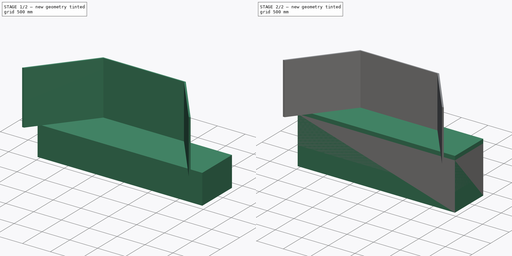
[diagram: build sequence overview — one tinted view per stage of 2, left to right]
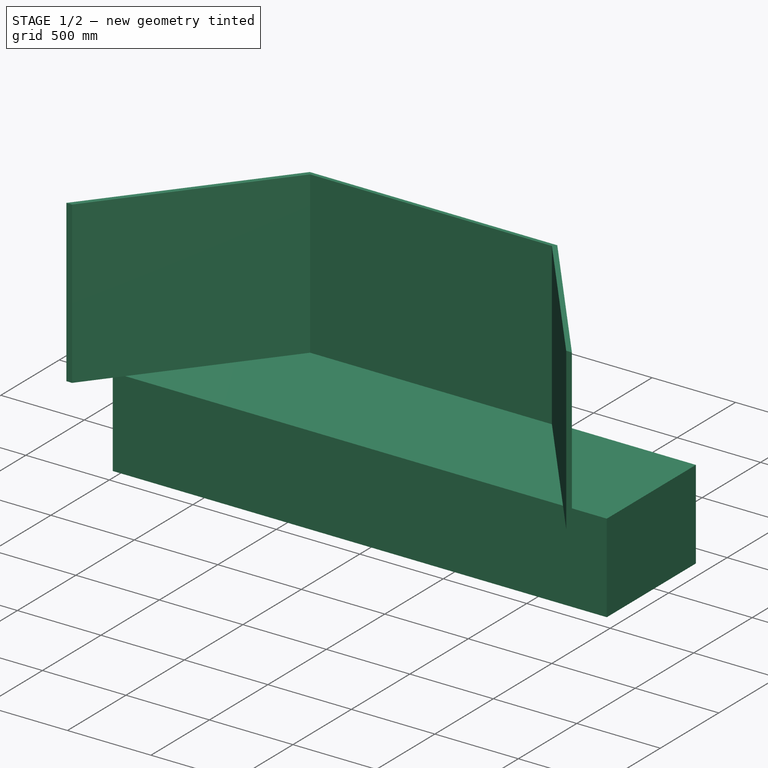
[diagram: stage 1 of 2 — iso view after this stage's code; geometry added in this stage tinted green]
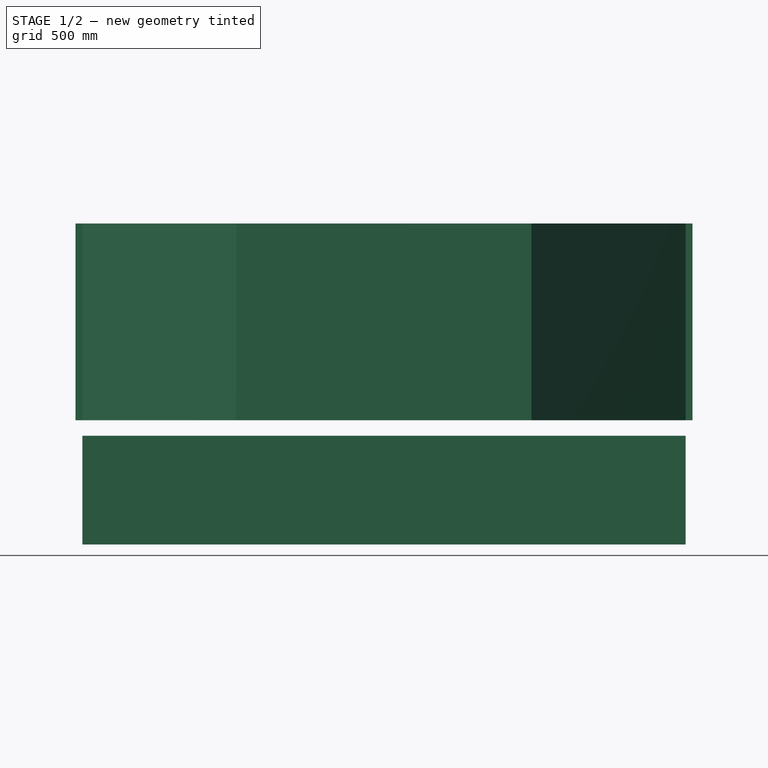
[diagram: stage 1 of 2 — front view after this stage's code; geometry added in this stage tinted green]
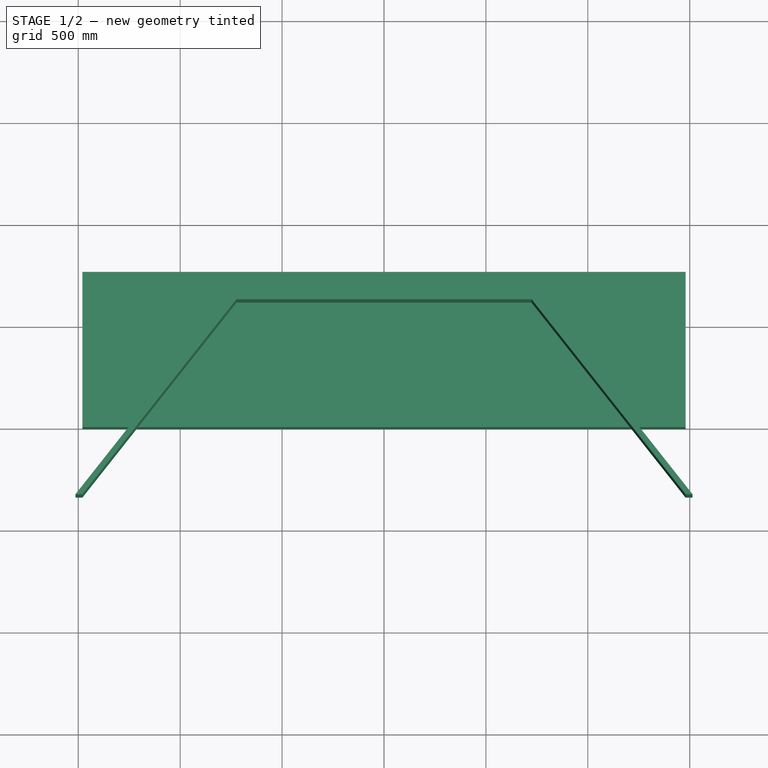
[diagram: stage 1 of 2 — top view after this stage's code; geometry added in this stage tinted green]
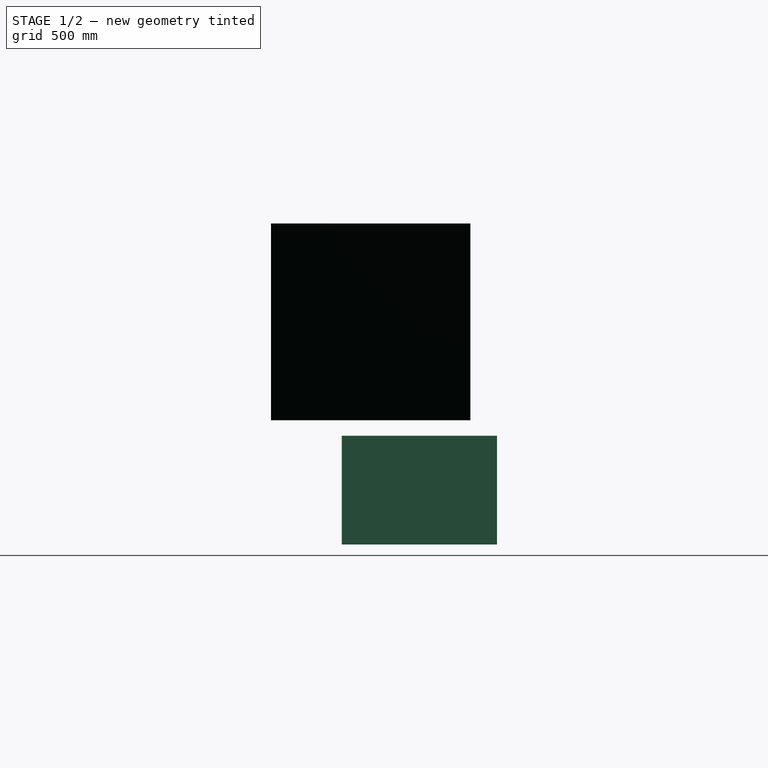
[diagram: stage 1 of 2 — right view after this stage's code; geometry added in this stage tinted green]
FCSTD DOCUMENT  (FreeCAD 2023.131R26244 +5365 (Git))
Label: Workstation-SevilleClassics_AirliftProS3
License: All rights reserved
LicenseURL: http://en.wikipedia.org/wiki/All_rights_reserved
objects: PartDesign::Pad×4, Sketcher::SketchObject×2, PartDesign::Body×1, App::Part×1
note: 17 computed .brp shape members not serialized (recipe doc carries the construction recipe); baked Part::Feature solids carry a one-line shape summary decoded from their .brp

FEATURE [Sketcher::SketchObject] Sketch001
  ArcFitTolerance = 1e-06
  AttachmentSupport = -> [Sketch]
  ExternalBSplineMaxDegree = 5
  ExternalBSplineTolerance = 0.0001
  ExternalGeometry = -> [Sketch]
  FixShape = 1
  FullyConstrained = false
  InternalTolerance = 1e-06
  InvalidShape = false
  MakeInternals = false
  MapMode = 5
  Support = -> [Sketch]
  TreeRank = 16
  ValidateShape = false
  sketch-geometry (11):
    g0: LineSegment StartX=-723.9 StartY=609.6 StartZ=0 EndX=723.9 EndY=609.6 EndZ=0
    g1: LineSegment StartX=723.9 StartY=609.6 StartZ=0 EndX=1479.56 EndY=-347.179 EndZ=0
    g2: LineSegment StartX=-723.9 StartY=609.6 StartZ=0 EndX=-1479.56 EndY=-347.179 EndZ=0
    g3: LineSegment [constr] StartX=-1479.56 StartY=-347.179 StartZ=0 EndX=1479.56 EndY=-347.179 EndZ=0
    g4: GeomPoint [constr] X=1101.73 Y=131.21 Z=0
    g5: GeomPoint [constr] X=1205.36 Y=0 Z=0
    g6: LineSegment StartX=-1479.56 StartY=-347.179 StartZ=0 EndX=-1513.75 EndY=-347.179 EndZ=0
    g7: LineSegment StartX=-1513.75 StartY=-347.179 StartZ=0 EndX=-741.041 EndY=631.188 EndZ=0
    g8: LineSegment StartX=-741.041 StartY=631.188 StartZ=0 EndX=741.041 EndY=631.188 EndZ=0
    g9: LineSegment StartX=741.041 StartY=631.188 StartZ=0 EndX=1513.75 EndY=-347.179 EndZ=0
    g10: LineSegment StartX=1513.75 StartY=-347.179 StartZ=0 EndX=1479.56 EndY=-347.179 EndZ=0
  constraints (26):
    c: Symmetric(g0,g0,g-2)
    c: DistanceX(g0,g0) = 1447.8
    c: Coincident(g1,g0)
    c: Coincident(g2,g0)
    c: Coincident(g3,g2)
    c: Coincident(g3,g1)
    c: Symmetric(g1,g2,g-2)
    c: Distance(g1) = 1219.2
    c: DistanceY(g0,g-3) = 152.4
    c: Symmetric(g1,g1,g4)
    c: PointOnObject(g5,g1)
    c: PointOnObject(g5,g-1)
    c: Distance(g5,g4) = 167.198
    c: DistanceX(g2,g-3) = 0.01
    c: Coincident(g6,g2)
    c: PointOnObject(g6,g3)
    c: Coincident(g7,g6)
    c: Coincident(g8,g7)
    c: Horizontal(g8)
    c: Coincident(g9,g8)
    c: PointOnObject(g9,g3)
    c: Coincident(g10,g9)
    c: Coincident(g10,g1)
    c: Equal(g6,g10)
    c: Equal(g7,g9)
    c: Parallel(g9,g1)
FEATURE [PartDesign::Pad] Pad002
  AddSubType = 0
  AlongSketchNormal = false
  AutoTaperInnerAngle = true
  CheckUpToFaceLimits = true
  ClaimChildren = false
  Direction = (0,0,1)
  Fit = 0
  FitJoin = 0
  FixShape = 1
  InnerFit = 0
  InnerFitJoin = 0
  InvalidShape = false
  Length = 965.2
  Length2 = 100
  Linearize = true
  NewSolid = true
  Profile = -> Sketch001
  Suppress = false
  TaperInnerAngle = 0
  TaperInnerAngleRev = 0
  TreeRank = 17
  Type = 0
  ValidateShape = false
  _ProfileBasedVersion = 1
FEATURE [PartDesign::Pad] Pad003
  AddSubType = 0
  AlongSketchNormal = false
  AutoTaperInnerAngle = true
  CheckUpToFaceLimits = true
  ClaimChildren = false
  Direction = (0,0,1)
  Fit = 0
  FitJoin = 0
  FixShape = 1
  InnerFit = 0
  InnerFitJoin = 0
  InvalidShape = false
  Length = 609.6
  Length2 = -76.2
  Linearize = true
  NewSolid = true
  Profile = -> Sketch
  Reversed = true
  Suppress = false
  TaperInnerAngle = 0
  TaperInnerAngleRev = 0
  TreeRank = 18
  Type = 4
  ValidateShape = false
  _ProfileBasedVersion = 1
FEATURE [PartDesign::Body] Body
  AutoGroupSolids = false
  ClaimAllChildren = false
  ExportMode = 0
  FixShape = 1
  Group = -> [Sketch,Pad,Pad001,Sketch001,Pad002,Pad003]
  InvalidShape = false
  Origin = -> Origin001
  Tip = -> Pad003
  TreeRank = 12
  ValidateShape = false
  _ExportChildren = -> [Pad,Pad001,Pad002,Pad003]
  _GroupVersion = 1
FEATURE [App::Part] Part  label="Workstation-SevilleClassics_AirliftProS3-Part"
  ClaimAllChildren = false
  ExportMode = 1
  Group = -> [Body]
  Origin = -> Origin
  TreeRank = 1
  _ExportChildren = -> [Body]
  _GroupVersion = 1
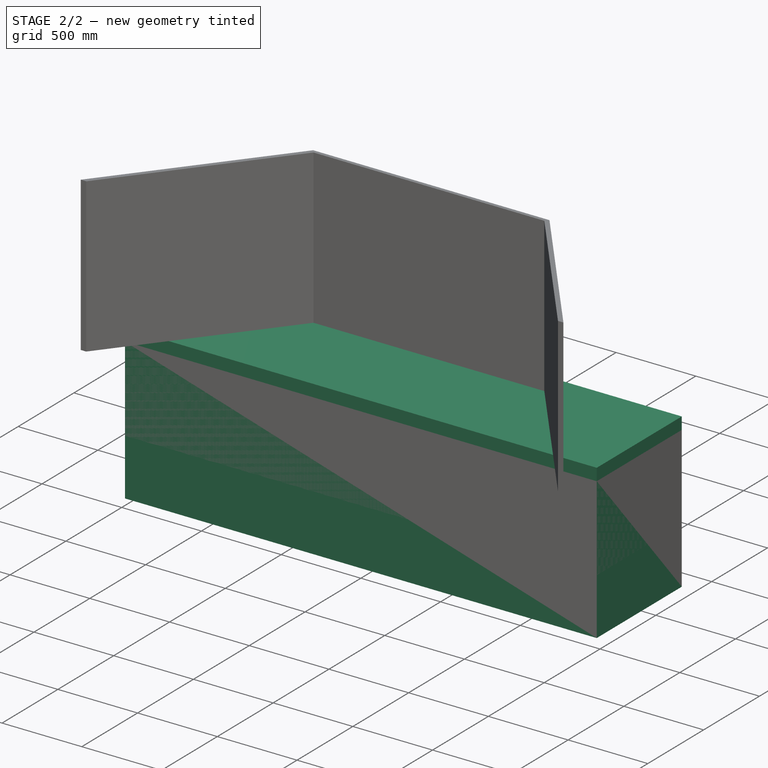
[diagram: stage 2 of 2 — iso view after this stage's code; geometry added in this stage tinted green]
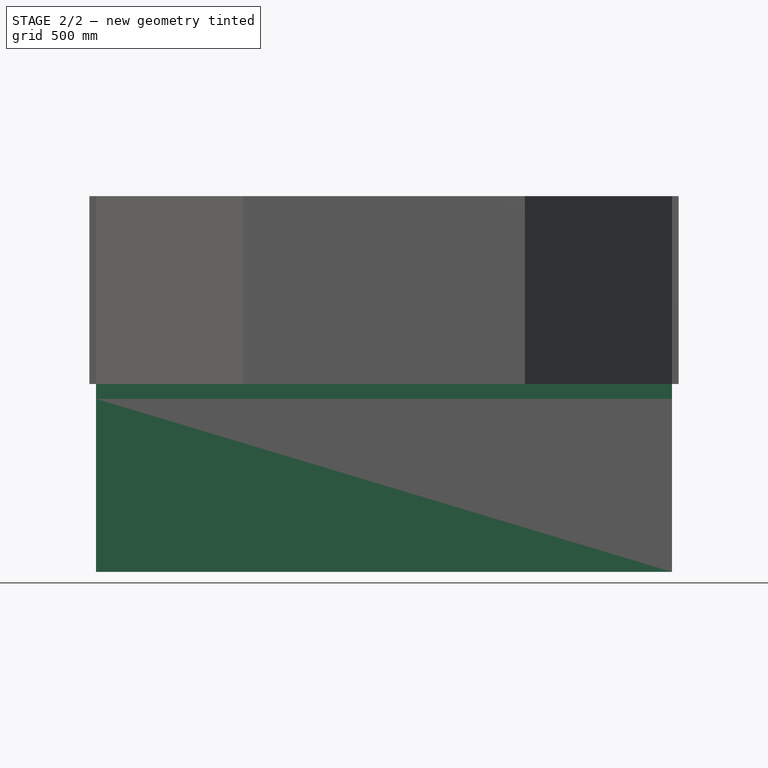
[diagram: stage 2 of 2 — front view after this stage's code; geometry added in this stage tinted green]
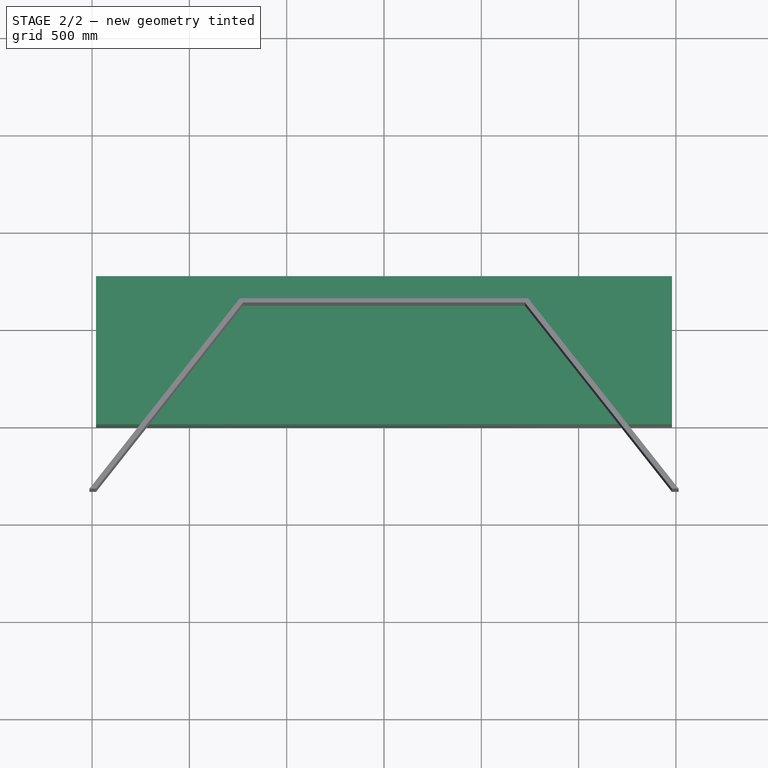
[diagram: stage 2 of 2 — top view after this stage's code; geometry added in this stage tinted green]
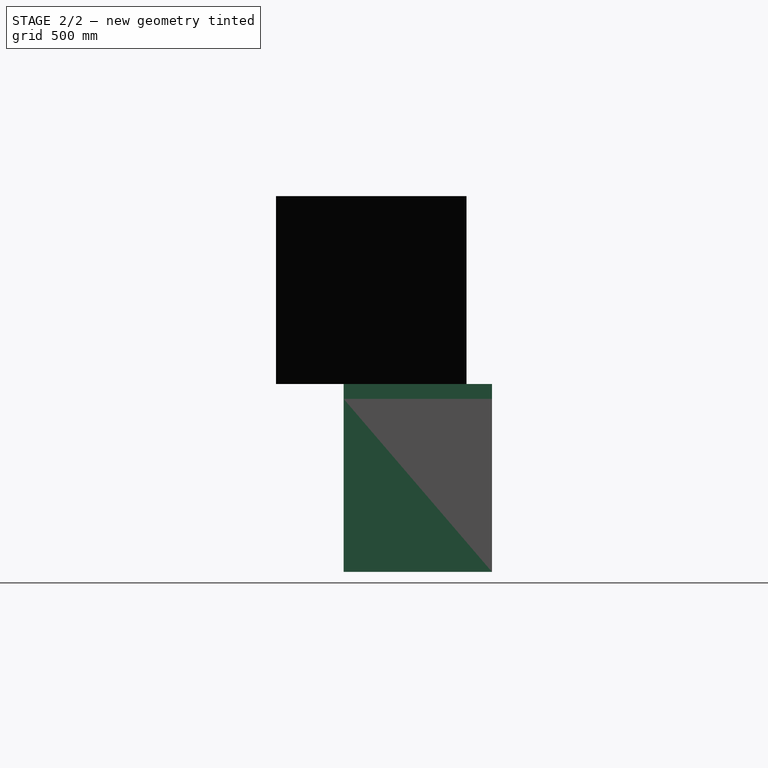
[diagram: stage 2 of 2 — right view after this stage's code; geometry added in this stage tinted green]
FEATURE [Sketcher::SketchObject] Sketch
  ArcFitTolerance = 1e-06
  AttachmentSupport = -> [XY_Plane]
  ExternalBSplineMaxDegree = 5
  ExternalBSplineTolerance = 0.0001
  FixShape = 1
  FullyConstrained = true
  InternalTolerance = 1e-06
  InvalidShape = false
  MakeInternals = false
  MapMode = 5
  Support = -> [XY_Plane]
  TreeRank = 13
  ValidateShape = false
  sketch-geometry (4):
    g0: LineSegment StartX=-1479.55 StartY=0 StartZ=0 EndX=1479.55 EndY=0 EndZ=0
    g1: LineSegment StartX=1479.55 StartY=0 StartZ=0 EndX=1479.55 EndY=762 EndZ=0
    g2: LineSegment StartX=1479.55 StartY=762 StartZ=0 EndX=-1479.55 EndY=762 EndZ=0
    g3: LineSegment StartX=-1479.55 StartY=762 StartZ=0 EndX=-1479.55 EndY=0 EndZ=0
  constraints (11):
    c: Coincident(g0,g1)
    c: Coincident(g1,g2)
    c: Coincident(g2,g3)
    c: Coincident(g3,g0)
    c: Horizontal(g0)
    c: Horizontal(g2)
    c: Vertical(g1)
    c: Vertical(g3)
    c: Symmetric(g0,g0,g-1)
    c: DistanceY(g3,g3) = 762
    c: DistanceX(g0,g0) = 2959.1
FEATURE [PartDesign::Pad] Pad
  AddSubType = 0
  AlongSketchNormal = false
  AutoTaperInnerAngle = true
  CheckUpToFaceLimits = true
  ClaimChildren = false
  Direction = (0,0,1)
  Fit = 0
  FitJoin = 0
  FixShape = 1
  InnerFit = 0
  InnerFitJoin = 0
  InvalidShape = false
  Length = 76.2
  Length2 = 100
  Linearize = true
  NewSolid = false
  Profile = -> Sketch
  Reversed = true
  Suppress = false
  TaperInnerAngle = 0
  TaperInnerAngleRev = 0
  TreeRank = 14
  Type = 0
  ValidateShape = false
  _ProfileBasedVersion = 1
FEATURE [PartDesign::Pad] Pad001
  AddSubType = 0
  AlongSketchNormal = false
  AutoTaperInnerAngle = true
  CheckUpToFaceLimits = true
  ClaimChildren = false
  Direction = (0,0,1)
  Fit = 0
  FitJoin = 0
  FixShape = 1
  InnerFit = 0
  InnerFitJoin = 0
  InvalidShape = false
  Length = 965.2
  Length2 = -76.2
  Linearize = true
  NewSolid = true
  Profile = -> Sketch
  Reversed = true
  Suppress = false
  TaperInnerAngle = 0
  TaperInnerAngleRev = 0
  TreeRank = 15
  Type = 4
  ValidateShape = false
  _ProfileBasedVersion = 1
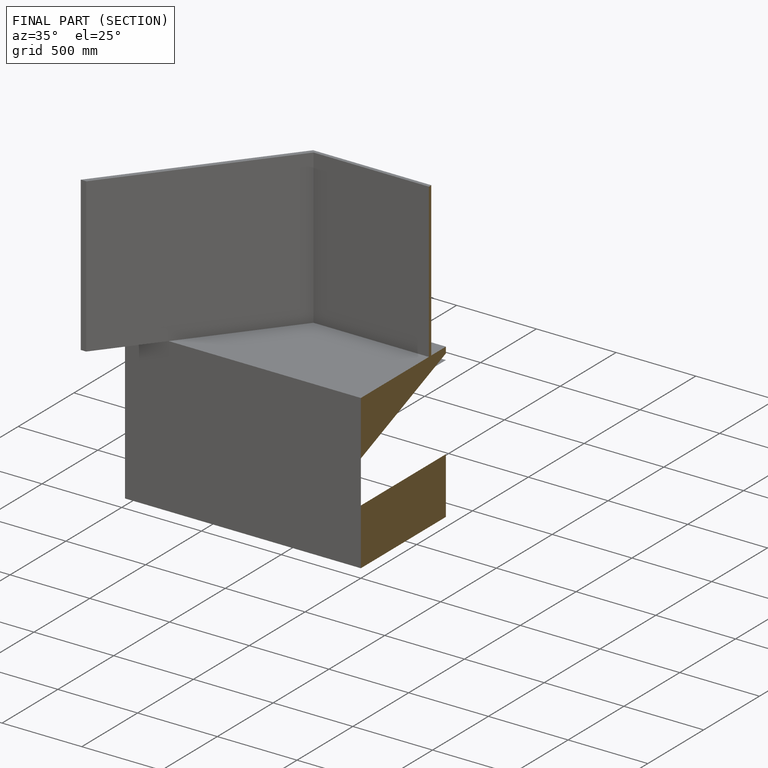
[diagram: finished part — half-section view (interior)]
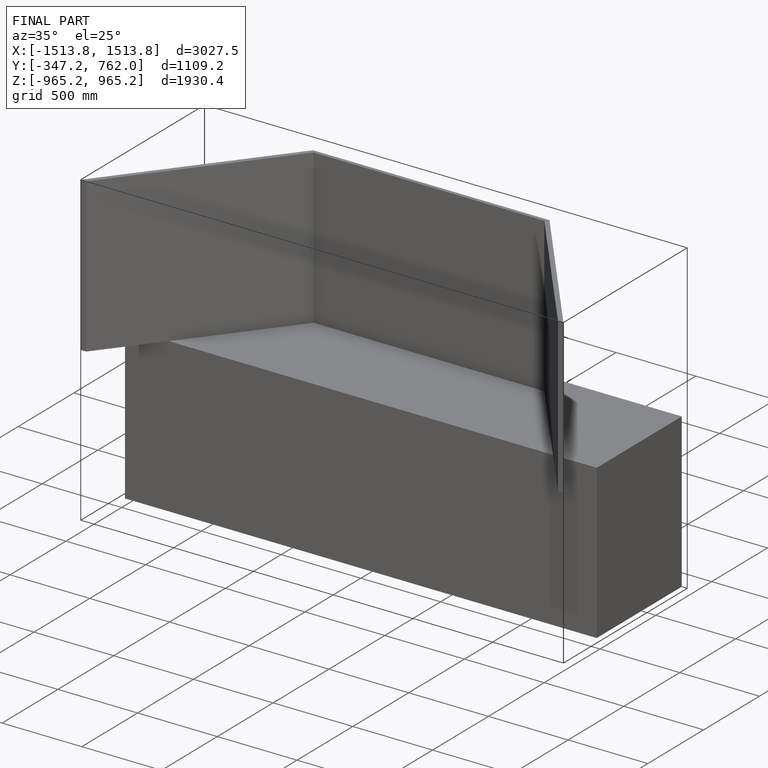
[diagram: finished part — iso view with bounding-box wireframe]
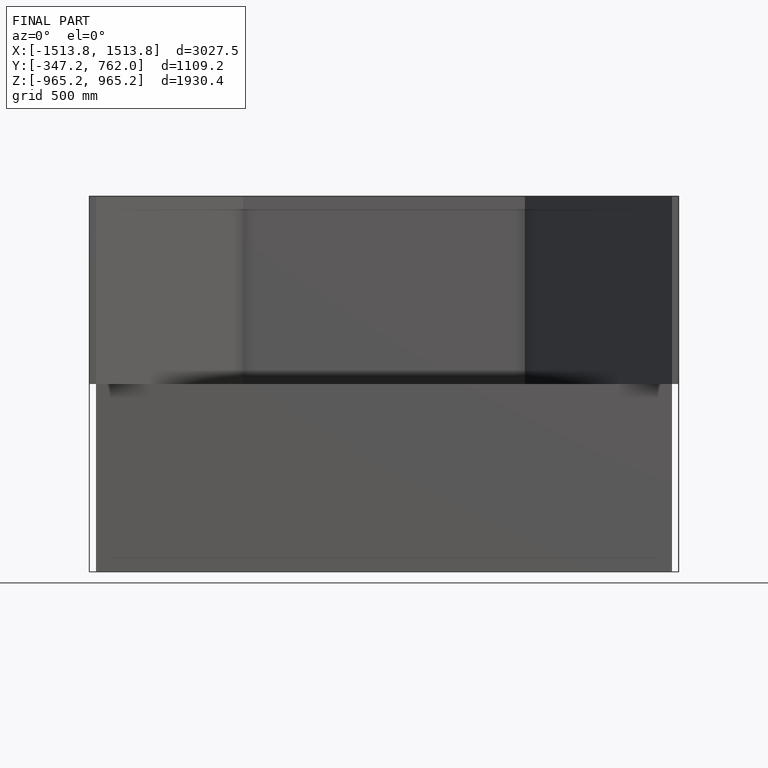
[diagram: finished part — front view with bounding-box wireframe]
